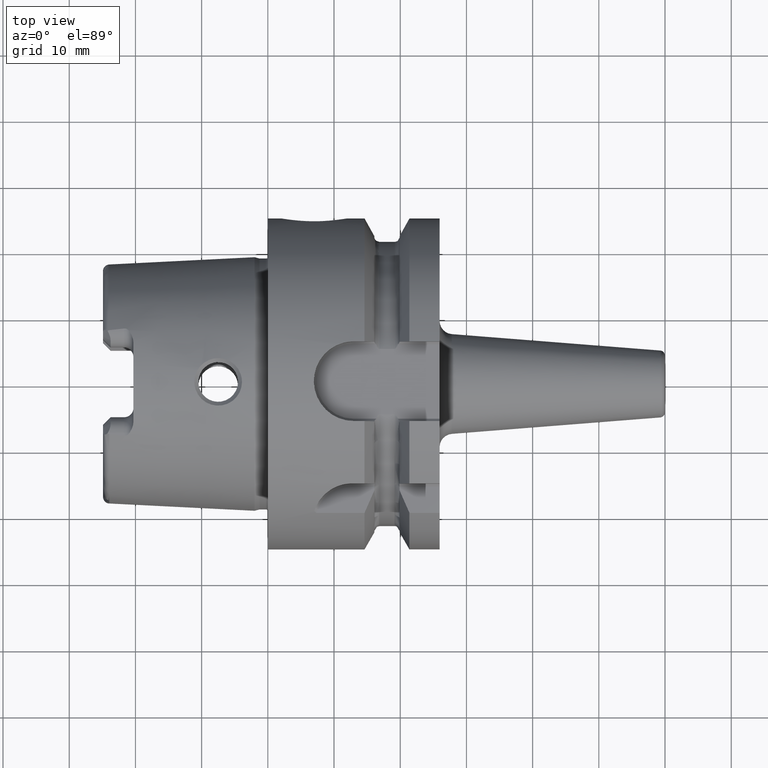
[diagram: clean part render]
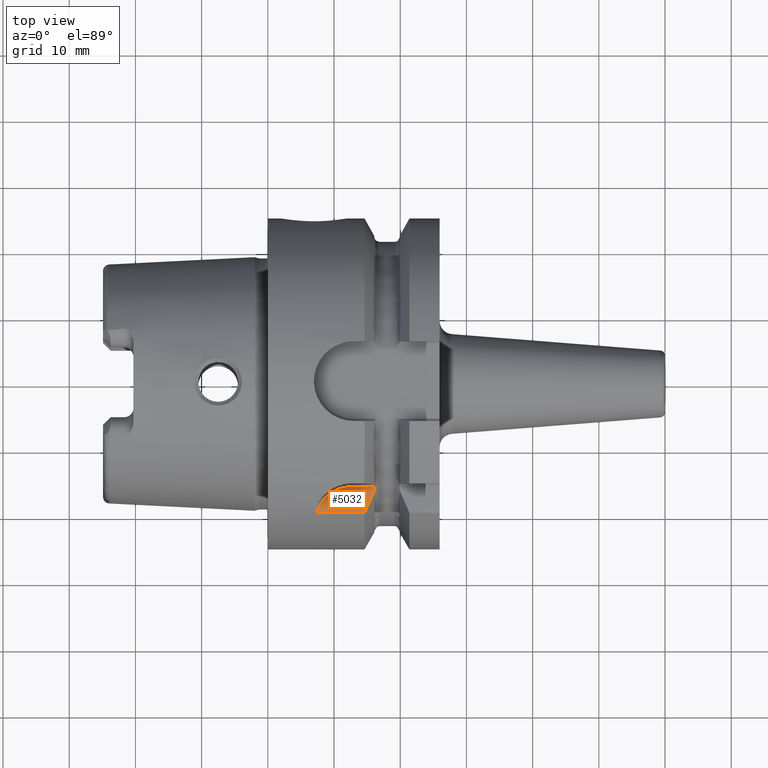
[diagram: same view with one face highlighted and labeled with its STEP entity id]
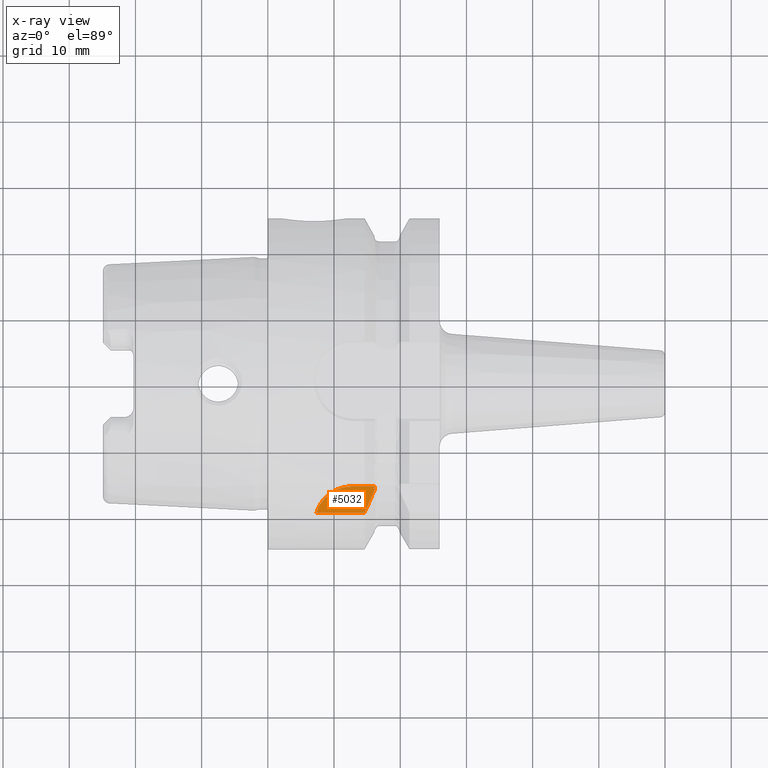
[diagram: x-ray of the same camera — body ghosted, the highlighted face saturated]
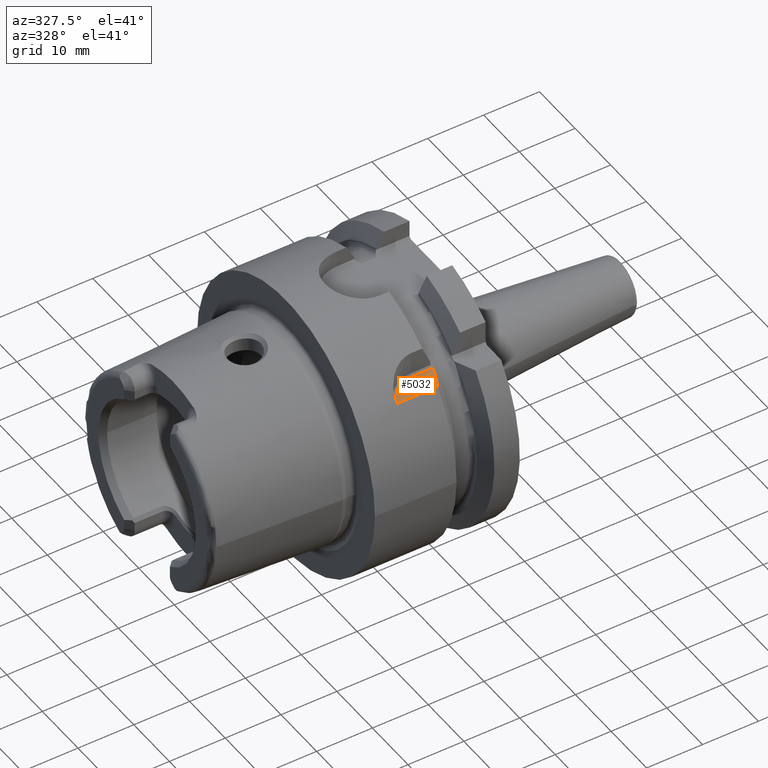
[diagram: same view with one face highlighted and labeled with its STEP entity id]
A machine part, top view. The second image highlights one B-rep face of the part: STEP entity #5032.
The next image is the same camera in x-ray: the body ghosted, the highlighted face saturated — about 0% of this face is hidden behind the body in this view.
A second angle (auxiliary view) of the same face is appended — the face is thin or edge-on in the first view.
In plain terms, the highlighted planar face has unit normal (0, 0, 1).
Its self-contained STEP definition (entity closure, byte-faithful):
#966=DIRECTION('',(1.E0,6.189435976035E-8,-2.143060964371E-7));
#967=VECTOR('',#966,7.275739392870E0);
#968=CARTESIAN_POINT('',(7.332327775641E0,-1.973265105789E1,1.535000155924E1));
#969=LINE('',#968,#967);
#1731=DIRECTION('',(0.E0,1.E0,0.E0));
#1732=VECTOR('',#1731,2.926490062944E-1);
#1733=CARTESIAN_POINT('',(1.60875E1,-1.636523825010E1,1.535E1));
#1734=LINE('',#1733,#1732);
#1735=CARTESIAN_POINT('',(1.60875E1,-1.636523825010E1,1.535E1));
#1736=CARTESIAN_POINT('',(1.594222955282E1,-1.671021589054E1,1.535E1));
#1737=CARTESIAN_POINT('',(1.563917139666E1,-1.741962945744E1,1.535E1));
#1738=CARTESIAN_POINT('',(1.514914658008E1,-1.853580810939E1,1.535E1));
#1739=CARTESIAN_POINT('',(1.479309423109E1,-1.932662776812E1,1.535E1));
#1740=CARTESIAN_POINT('',(1.460806716851E1,-1.973265060756E1,1.535E1));
#1742=CARTESIAN_POINT('',(1.269368627289E1,-2.135E1,1.535E1));
#1743=DIRECTION('',(0.E0,0.E0,-1.E0));
#1744=DIRECTION('',(-9.573857125066E-1,2.888123915073E-1,0.E0));
#1745=AXIS2_PLACEMENT_3D('',#1742,#1743,#1744);
#1747=DIRECTION('',(9.999999999998E-1,4.545162872116E-7,-4.544871516819E-7));
#1748=VECTOR('',#1747,3.430650616086E0);
#1749=CARTESIAN_POINT('',(1.269368627811E1,-1.575000155929E1,1.535000155919E1));
#1750=LINE('',#1749,#1748);
#1751=CARTESIAN_POINT('',(1.60875E1,-1.607258924380E1,1.535E1));
#1752=CARTESIAN_POINT('',(1.60875E1,-1.601750661286E1,1.535E1));
#1753=CARTESIAN_POINT('',(1.609380833660E1,-1.590866065154E1,1.535E1));
#1754=CARTESIAN_POINT('',(1.611211056121E1,-1.580244426033E1,1.535E1));
#1755=CARTESIAN_POINT('',(1.612433689420E1,-1.575E1,1.535E1));
#2985=CARTESIAN_POINT('',(1.60875E1,-1.636523825010E1,1.535E1));
#2986=CARTESIAN_POINT('',(1.60875E1,-1.607258924380E1,1.535E1));
#2987=VERTEX_POINT('',#2985);
#2988=VERTEX_POINT('',#2986);
#2989=VERTEX_POINT('',#1755);
#2995=VERTEX_POINT('',#1740);
#3060=CARTESIAN_POINT('',(7.332335239587E0,-1.973265330952E1,1.535E1));
#3061=CARTESIAN_POINT('',(1.269368627289E1,-1.575000935541E1,1.535E1));
#3062=VERTEX_POINT('',#3060);
#3063=VERTEX_POINT('',#3061);
#5017=CARTESIAN_POINT('',(0.E0,0.E0,1.535E1));
#5018=DIRECTION('',(0.E0,0.E0,1.E0));
#5019=DIRECTION('',(1.E0,0.E0,0.E0));
#5020=AXIS2_PLACEMENT_3D('',#5017,#5018,#5019);
#5021=PLANE('',#5020);
#5022=ORIENTED_EDGE('',*,*,#4498,.F.);
#5023=ORIENTED_EDGE('',*,*,#4701,.T.);
#5024=ORIENTED_EDGE('',*,*,#4204,.F.);
#5026=ORIENTED_EDGE('',*,*,#5025,.T.);
#5028=ORIENTED_EDGE('',*,*,#5027,.T.);
#5029=ORIENTED_EDGE('',*,*,#4519,.F.);
#5030=EDGE_LOOP('',(#5022,#5023,#5024,#5026,#5028,#5029));
#5031=FACE_OUTER_BOUND('',#5030,.F.);
#5032=ADVANCED_FACE('',(#5031),#5021,.T.);
#1741=B_SPLINE_CURVE_WITH_KNOTS('',3,(#1735,#1736,#1737,#1738,#1739,#1740),
.UNSPECIFIED.,.F.,.F.,(4,1,1,4),(0.E0,3.333333333333E-1,6.666666666667E-1,1.E0),
.UNSPECIFIED.);
#1746=CIRCLE('',#1745,5.599990644588E0);
#1756=B_SPLINE_CURVE_WITH_KNOTS('',3,(#1751,#1752,#1753,#1754,#1755),
.UNSPECIFIED.,.F.,.F.,(4,1,4),(0.E0,5.E-1,1.E0),.UNSPECIFIED.);
#4204=EDGE_CURVE('',#3062,#2995,#969,.T.);
#4498=EDGE_CURVE('',#2987,#2988,#1734,.T.);
#4519=EDGE_CURVE('',#2988,#2989,#1756,.T.);
#4701=EDGE_CURVE('',#2987,#2995,#1741,.T.);
#5025=EDGE_CURVE('',#3062,#3063,#1746,.T.);
#5027=EDGE_CURVE('',#3063,#2989,#1750,.T.);